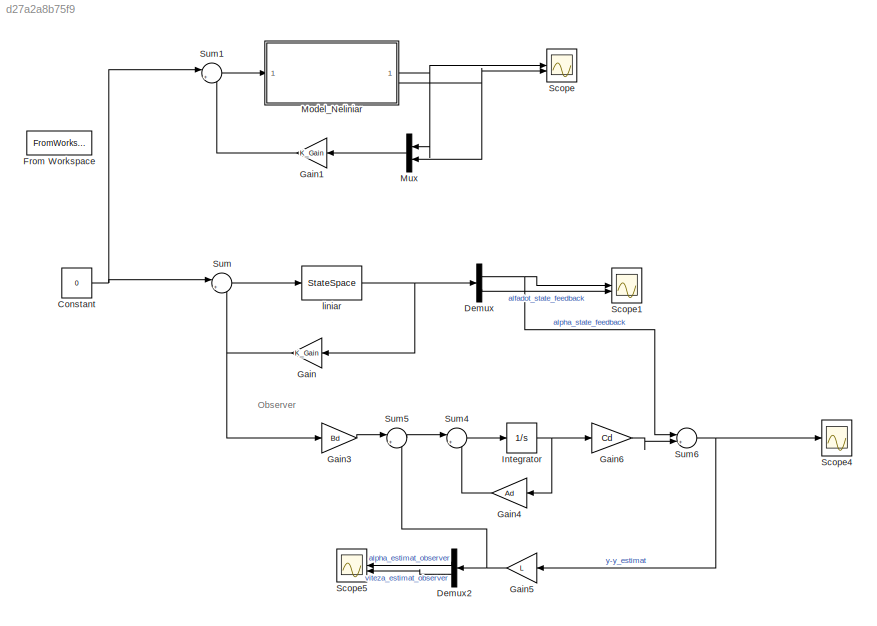
MODEL slx_d27a2a8b75f9
KIND model
CONFIG AbsTol = auto
CONFIG EnableMultiTasking = off
CONFIG FixedStep = 1e-3
CONFIG MaxStep = auto
CONFIG MinStep = auto
CONFIG RelTol = 1e-3
CONFIG SampleTimeConstraint = Unconstrained
CONFIG SolverName = ode1
CONFIG StartTime = 0.0
CONFIG StopTime = 50
BLOCK [Constant] Constant
  Value = 0
BLOCK [Demux] Demux
  Outputs = 2
BLOCK [Demux] Demux2
  NameLocation = top
  Outputs = 2
BLOCK [FromWorkspace] From Workspace
  VariableName = staircaseSignal
BLOCK [Gain] Gain
  Gain = K_Gain
  Multiplication = Matrix(K*u)
  NameLocation = top
BLOCK [Gain] Gain1
  Gain = K_Gain
  Multiplication = Matrix(K*u)
  NameLocation = top
BLOCK [Gain] Gain3
  Gain = Bd
  Multiplication = Matrix(K*u)
BLOCK [Gain] Gain4
  Gain = Ad
  Multiplication = Matrix(K*u)
  NameLocation = top
BLOCK [Gain] Gain5
  Gain = L
  Multiplication = Matrix(K*u)
  NameLocation = top
BLOCK [Gain] Gain6
  Gain = Cd
  Multiplication = Matrix(K*u)
BLOCK [Integrator] Integrator
  InitialCondition = pi
  WrapState = on
  WrappedStateLowerValue = 0
  WrappedStateUpperValue = 2*pi
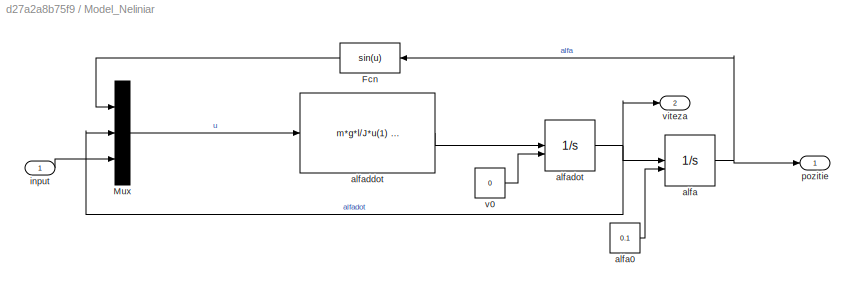
BLOCK [SubSystem] Model_Neliniar
BLOCK [Fcn] Model_Neliniar/Fcn
  Expr = sin(u)
  NameLocation = top
BLOCK [Mux] Model_Neliniar/Mux
  DisplayOption = bar
  Inputs = 3
BLOCK [Integrator] Model_Neliniar/alfa
  InitialConditionSource = external
  WrapState = on
  WrappedStateLowerValue = 0
  WrappedStateUpperValue = 2*pi
BLOCK [Constant] Model_Neliniar/alfa0
  Value = 0.1
BLOCK [Fcn] Model_Neliniar/alfaddot
  Expr = m*g*l/J*u(1) - b/J*u(2) - (K^2)/R/J*u(2) + K/R/J*u(3)
BLOCK [Integrator] Model_Neliniar/alfadot
  InitialConditionSource = external
BLOCK [Inport] Model_Neliniar/input
BLOCK [Outport] Model_Neliniar/pozitie
BLOCK [Constant] Model_Neliniar/v0
  Value = 0
BLOCK [Outport] Model_Neliniar/viteza
  Port = 2
BLOCK [Mux] Mux
  DisplayOption = bar
  Inputs = 2
  NameLocation = top
BLOCK [Scope] Scope
  Floating = off
  NumInputPorts = 2
  ScopeSpecificationString = Simulink.scopes.TimeScopeBlockCfg('CurrentConfiguration', extmgr.ConfigurationSet(extmgr.Configuration('Core','General UI',true),extmgr.Configuration('Core','Source UI',true),extmgr.Configuration('Sources','WiredSimulink',true),extmgr.Configuration('Visuals','Time Domain',true,'SerializedDisplays',{struct('MinYLimReal','-0.0125','MaxYLimReal','0.1125','YLabelReal','','MinYLimMag','0.00000','MaxYLi...<+2247ch>
BLOCK [Scope] Scope1
  Floating = off
  NumInputPorts = 2
  ScopeSpecificationString = Simulink.scopes.TimeScopeBlockCfg('CurrentConfiguration', extmgr.ConfigurationSet(extmgr.Configuration('Core','General UI',true),extmgr.Configuration('Core','Source UI',true),extmgr.Configuration('Sources','WiredSimulink',true,'DataLoggingVariableName','ScopeData1'),extmgr.Configuration('Visuals','Time Domain',true,'SerializedDisplays',{struct('MinYLimReal','-0.3927','MaxYLimReal','3.53429','YLabe...<+2516ch>
BLOCK [Scope] Scope4
  Floating = off
  NumInputPorts = 1
  ScopeSpecificationString = Simulink.scopes.TimeScopeBlockCfg('CurrentConfiguration', extmgr.ConfigurationSet(extmgr.Configuration('Core','General UI',true),extmgr.Configuration('Core','Source UI',true),extmgr.Configuration('Sources','WiredSimulink',true,'DataLoggingVariableName','ScopeData3'),extmgr.Configuration('Visuals','Time Domain',true,'SerializedDisplays',{struct('MinYLimReal','-0.19837','MaxYLimReal','0.0591','YLabe...<+1760ch>
BLOCK [Scope] Scope5
  Floating = off
  NameLocation = top
  NumInputPorts = 2
  ScopeSpecificationString = Simulink.scopes.TimeScopeBlockCfg('CurrentConfiguration', extmgr.ConfigurationSet(extmgr.Configuration('Core','General UI',true),extmgr.Configuration('Core','Source UI',true),extmgr.Configuration('Sources','WiredSimulink',true,'DataLoggingVariableName','ScopeData4'),extmgr.Configuration('Visuals','Time Domain',true,'SerializedDisplays',{struct('MinYLimReal','-6.34989','MaxYLimReal','0.70554','YLab...<+2528ch>
BLOCK [Sum] Sum
  Inputs = |+-
BLOCK [Sum] Sum1
  Inputs = |+-
BLOCK [Sum] Sum4
  Inputs = |++
BLOCK [Sum] Sum5
  Inputs = |++
BLOCK [Sum] Sum6
  Inputs = |+-|
BLOCK [StateSpace] liniar
  A = Ac
  B = Bc
  C = [1 0;0 1]
  D = [0;0]
  InitialCondition = [pi, 0]
ANNOTATION (root): Observer
NET Constant:1 -> Sum1:1, Sum:1
LINE Demux2:1 -> Scope5:1
LINE Demux2:2 -> Scope5:2
NET Demux:1 -> Scope1:1, Sum6:1
LINE Demux:2 -> Scope1:2
LINE Gain1:1 -> Sum1:2
LINE Gain3:1 -> Sum5:1
LINE Gain4:1 -> Sum4:2
NET Gain5:1 -> Demux2:1, Sum5:2
LINE Gain6:1 -> Sum6:2
NET Gain:1 -> Gain3:1, Sum:2
NET Integrator:1 -> Gain4:1, Gain6:1
LINE Model_Neliniar/Fcn:1 -> Model_Neliniar/Mux:1
LINE Model_Neliniar/Mux:1 -> Model_Neliniar/alfaddot:1
LINE Model_Neliniar/alfa0:1 -> Model_Neliniar/alfa:2
NET Model_Neliniar/alfa:1 -> Model_Neliniar/Fcn:1, Model_Neliniar/pozitie:1
LINE Model_Neliniar/alfaddot:1 -> Model_Neliniar/alfadot:1
NET Model_Neliniar/alfadot:1 -> Model_Neliniar/Mux:2, Model_Neliniar/alfa:1, Model_Neliniar/viteza:1
LINE Model_Neliniar/input:1 -> Model_Neliniar/Mux:3
LINE Model_Neliniar/v0:1 -> Model_Neliniar/alfadot:2
NET Model_Neliniar:1 -> Mux:1, Scope:1
NET Model_Neliniar:2 -> Mux:2, Scope:2
LINE Mux:1 -> Gain1:1
LINE Sum1:1 -> Model_Neliniar:1
LINE Sum4:1 -> Integrator:1
LINE Sum5:1 -> Sum4:1
NET Sum6:1 -> Gain5:1, Scope4:1
LINE Sum:1 -> liniar:1
NET liniar:1 -> Demux:1, Gain:1
note: NET lines group one-source signal fan-out (src -> all destinations, sorted); 1:1 wires keep LINE
